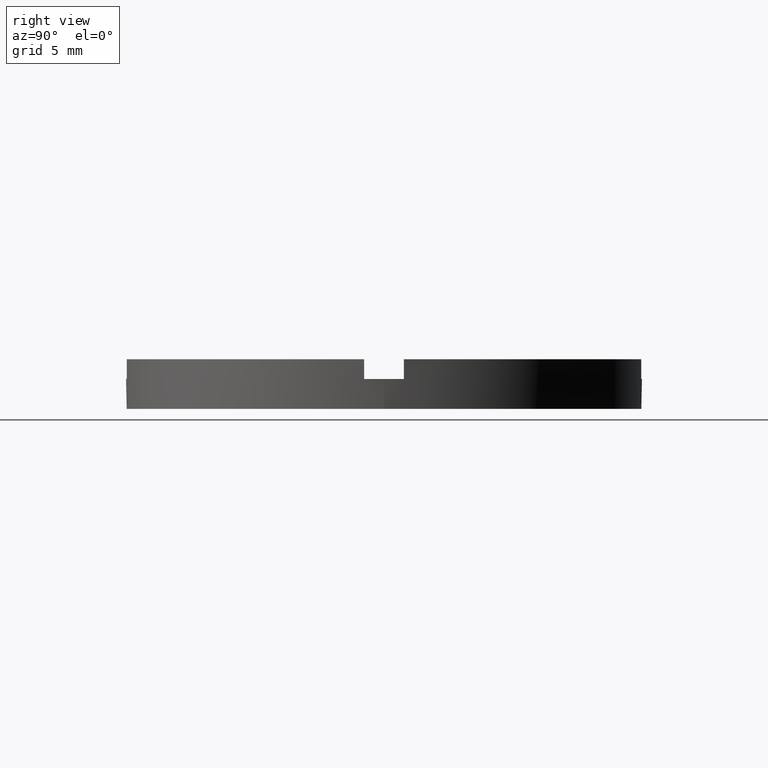
[diagram: clean part render]
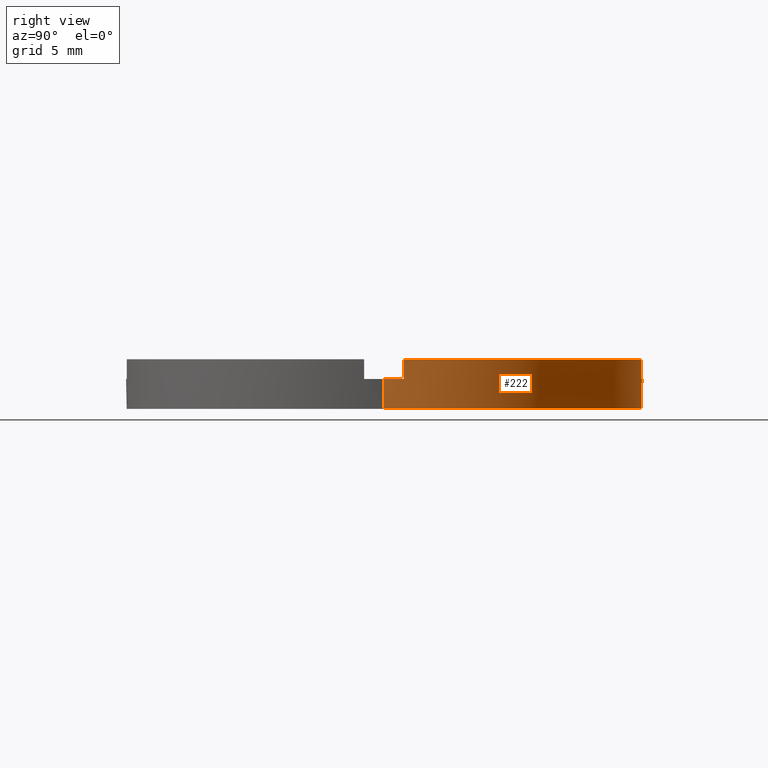
[diagram: same view with one face highlighted and labeled with its STEP entity id]
A machine part, right view. The second image highlights one B-rep face of the part: STEP entity #222.
In plain terms, the highlighted cylindrical surface (partial cylindrical patch) has radius 13 mm, axis along (-0, -0, -1).
Its self-contained STEP definition (entity closure, byte-faithful):
#3 = CARTESIAN_POINT ( 'NONE',  ( -1.000000000000024647, 12.96148139681571543, 2.500000000000000000 ) ) ;
#6 = CARTESIAN_POINT ( 'NONE',  ( -12.99999999999999822, 0.000000000000000000, 1.500000000000000000 ) ) ;
#7 = VECTOR ( 'NONE', #533, 1000.000000000000000 ) ;
#40 = DIRECTION ( 'NONE',  ( 1.000000000000000000, 0.000000000000000000, 0.000000000000000000 ) ) ;
#49 = AXIS2_PLACEMENT_3D ( 'NONE', #326, #197, #426 ) ;
#53 = CARTESIAN_POINT ( 'NONE',  ( -12.99999999999999822, 0.000000000000000000, 0.000000000000000000 ) ) ;
#57 = CARTESIAN_POINT ( 'NONE',  ( 12.99999999999999822, 1.592040838891558898E-15, 0.000000000000000000 ) ) ;
#58 = CARTESIAN_POINT ( 'NONE',  ( 12.99999999999999822, 1.592040838891558898E-15, 2.500000000000000000 ) ) ;
#69 = EDGE_CURVE ( 'NONE', #336, #389, #464, .T. ) ;
#73 = EDGE_CURVE ( 'NONE', #354, #635, #218, .T. ) ;
#75 = EDGE_CURVE ( 'NONE', #106, #413, #220, .T. ) ;
#77 = DIRECTION ( 'NONE',  ( -0.000000000000000000, -0.000000000000000000, -1.000000000000000000 ) ) ;
#86 = AXIS2_PLACEMENT_3D ( 'NONE', #721, #194, #388 ) ;
#101 = ORIENTED_EDGE ( 'NONE', *, *, #563, .T. ) ;
#102 = AXIS2_PLACEMENT_3D ( 'NONE', #741, #302, #349 ) ;
#106 = VERTEX_POINT ( 'NONE', #6 ) ;
#110 = EDGE_LOOP ( 'NONE', ( #699, #386, #168, #599, #448, #101, #340, #690, #436, #685, #338, #686 ) ) ;
#111 = DIRECTION ( 'NONE',  ( -0.000000000000000000, -0.000000000000000000, -1.000000000000000000 ) ) ;
#120 = CARTESIAN_POINT ( 'NONE',  ( -12.96148139681571898, 0.9999999999999776845, 2.500000000000000000 ) ) ;
#139 = VERTEX_POINT ( 'NONE', #666 ) ;
#168 = ORIENTED_EDGE ( 'NONE', *, *, #639, .T. ) ;
#170 = DIRECTION ( 'NONE',  ( 1.000000000000000000, 0.000000000000000000, 0.000000000000000000 ) ) ;
#194 = DIRECTION ( 'NONE',  ( 0.000000000000000000, 0.000000000000000000, 1.000000000000000000 ) ) ;
#197 = DIRECTION ( 'NONE',  ( 0.000000000000000000, 0.000000000000000000, 1.000000000000000000 ) ) ;
#205 = DIRECTION ( 'NONE',  ( -0.000000000000000000, -0.000000000000000000, -1.000000000000000000 ) ) ;
#211 = CARTESIAN_POINT ( 'NONE',  ( 0.9999999999999753530, 12.96148139681571898, 2.500000000000000000 ) ) ;
#218 = CIRCLE ( 'NONE', #277, 12.99999999999999822 ) ;
#219 = VECTOR ( 'NONE', #258, 1000.000000000000000 ) ;
#220 = LINE ( 'NONE', #780, #224 ) ;
#221 = VECTOR ( 'NONE', #77, 1000.000000000000000 ) ;
#222 = ADVANCED_FACE ( 'NONE', ( #761 ), #236, .T. ) ;
#223 = AXIS2_PLACEMENT_3D ( 'NONE', #481, #709, #40 ) ;
#224 = VECTOR ( 'NONE', #403, 1000.000000000000000 ) ;
#230 = LINE ( 'NONE', #733, #219 ) ;
#236 = CYLINDRICAL_SURFACE ( 'NONE', #270, 12.99999999999999822 ) ;
#253 = CARTESIAN_POINT ( 'NONE',  ( 12.96148139681572964, 0.9999999999998402389, 1.500000000000000000 ) ) ;
#258 = DIRECTION ( 'NONE',  ( 0.000000000000000000, 0.000000000000000000, 1.000000000000000000 ) ) ;
#270 = AXIS2_PLACEMENT_3D ( 'NONE', #374, #624, #393 ) ;
#275 = VECTOR ( 'NONE', #205, 1000.000000000000000 ) ;
#277 = AXIS2_PLACEMENT_3D ( 'NONE', #390, #472, #717 ) ;
#278 = LINE ( 'NONE', #58, #275 ) ;
#279 = CIRCLE ( 'NONE', #102, 12.99999999999999822 ) ;
#284 = DIRECTION ( 'NONE',  ( 0.000000000000000000, 0.000000000000000000, 1.000000000000000000 ) ) ;
#288 = CARTESIAN_POINT ( 'NONE',  ( 0.000000000000000000, 0.000000000000000000, 1.500000000000000000 ) ) ;
#291 = CARTESIAN_POINT ( 'NONE',  ( -1.000000000000024647, 12.96148139681571543, 2.500000000000000000 ) ) ;
#302 = DIRECTION ( 'NONE',  ( 0.000000000000000000, 0.000000000000000000, 1.000000000000000000 ) ) ;
#311 = EDGE_CURVE ( 'NONE', #669, #389, #727, .T. ) ;
#322 = EDGE_CURVE ( 'NONE', #354, #664, #230, .T. ) ;
#326 = CARTESIAN_POINT ( 'NONE',  ( 0.000000000000000000, 0.000000000000000000, 2.500000000000000000 ) ) ;
#336 = VERTEX_POINT ( 'NONE', #493 ) ;
#337 = AXIS2_PLACEMENT_3D ( 'NONE', #288, #284, #170 ) ;
#338 = ORIENTED_EDGE ( 'NONE', *, *, #508, .F. ) ;
#340 = ORIENTED_EDGE ( 'NONE', *, *, #782, .F. ) ;
#349 = DIRECTION ( 'NONE',  ( 1.000000000000000000, 0.000000000000000000, 0.000000000000000000 ) ) ;
#353 = VERTEX_POINT ( 'NONE', #3 ) ;
#354 = VERTEX_POINT ( 'NONE', #387 ) ;
#374 = CARTESIAN_POINT ( 'NONE',  ( 0.000000000000000000, 0.000000000000000000, 2.500000000000000000 ) ) ;
#386 = ORIENTED_EDGE ( 'NONE', *, *, #634, .T. ) ;
#387 = CARTESIAN_POINT ( 'NONE',  ( 0.9999999999999753530, 12.96148139681571898, 1.500000000000000000 ) ) ;
#388 = DIRECTION ( 'NONE',  ( 1.000000000000000000, 0.000000000000000000, 0.000000000000000000 ) ) ;
#389 = VERTEX_POINT ( 'NONE', #253 ) ;
#390 = CARTESIAN_POINT ( 'NONE',  ( 0.000000000000000000, 0.000000000000000000, 1.500000000000000000 ) ) ;
#393 = DIRECTION ( 'NONE',  ( -1.000000000000000000, 0.000000000000000000, 0.000000000000000000 ) ) ;
#403 = DIRECTION ( 'NONE',  ( -0.000000000000000000, -0.000000000000000000, -1.000000000000000000 ) ) ;
#413 = VERTEX_POINT ( 'NONE', #53 ) ;
#426 = DIRECTION ( 'NONE',  ( 1.000000000000000000, 0.000000000000000000, 0.000000000000000000 ) ) ;
#436 = ORIENTED_EDGE ( 'NONE', *, *, #73, .F. ) ;
#448 = ORIENTED_EDGE ( 'NONE', *, *, #743, .F. ) ;
#464 = CIRCLE ( 'NONE', #223, 12.99999999999999822 ) ;
#472 = DIRECTION ( 'NONE',  ( 0.000000000000000000, -0.000000000000000000, 1.000000000000000000 ) ) ;
#481 = CARTESIAN_POINT ( 'NONE',  ( 0.000000000000000000, 0.000000000000000000, 1.500000000000000000 ) ) ;
#488 = VECTOR ( 'NONE', #111, 1000.000000000000000 ) ;
#493 = CARTESIAN_POINT ( 'NONE',  ( 12.99999999999999822, 1.592040838891558898E-15, 1.500000000000000000 ) ) ;
#496 = CARTESIAN_POINT ( 'NONE',  ( 12.96148139681572964, 0.9999999999998402389, 2.500000000000000000 ) ) ;
#505 = EDGE_CURVE ( 'NONE', #353, #635, #742, .T. ) ;
#508 = EDGE_CURVE ( 'NONE', #669, #664, #748, .T. ) ;
#517 = LINE ( 'NONE', #706, #7 ) ;
#533 = DIRECTION ( 'NONE',  ( 0.000000000000000000, 0.000000000000000000, 1.000000000000000000 ) ) ;
#543 = CIRCLE ( 'NONE', #86, 12.99999999999999822 ) ;
#549 = CIRCLE ( 'NONE', #337, 12.99999999999999822 ) ;
#563 = EDGE_CURVE ( 'NONE', #139, #636, #517, .T. ) ;
#591 = CARTESIAN_POINT ( 'NONE',  ( -1.000000000000024647, 12.96148139681571543, 1.500000000000000000 ) ) ;
#599 = ORIENTED_EDGE ( 'NONE', *, *, #75, .F. ) ;
#624 = DIRECTION ( 'NONE',  ( -0.000000000000000000, -0.000000000000000000, -1.000000000000000000 ) ) ;
#634 = EDGE_CURVE ( 'NONE', #336, #691, #278, .T. ) ;
#635 = VERTEX_POINT ( 'NONE', #591 ) ;
#636 = VERTEX_POINT ( 'NONE', #120 ) ;
#639 = EDGE_CURVE ( 'NONE', #691, #413, #279, .T. ) ;
#642 = CARTESIAN_POINT ( 'NONE',  ( 12.96148139681572964, 0.9999999999998402389, 2.500000000000000000 ) ) ;
#664 = VERTEX_POINT ( 'NONE', #211 ) ;
#666 = CARTESIAN_POINT ( 'NONE',  ( -12.96148139681571898, 0.9999999999999776845, 1.500000000000000000 ) ) ;
#669 = VERTEX_POINT ( 'NONE', #642 ) ;
#685 = ORIENTED_EDGE ( 'NONE', *, *, #322, .T. ) ;
#686 = ORIENTED_EDGE ( 'NONE', *, *, #311, .T. ) ;
#690 = ORIENTED_EDGE ( 'NONE', *, *, #505, .T. ) ;
#691 = VERTEX_POINT ( 'NONE', #57 ) ;
#699 = ORIENTED_EDGE ( 'NONE', *, *, #69, .F. ) ;
#706 = CARTESIAN_POINT ( 'NONE',  ( -12.96148139681571898, 0.9999999999999776845, 2.500000000000000000 ) ) ;
#709 = DIRECTION ( 'NONE',  ( 0.000000000000000000, 0.000000000000000000, 1.000000000000000000 ) ) ;
#717 = DIRECTION ( 'NONE',  ( 1.000000000000000000, 0.000000000000000000, 0.000000000000000000 ) ) ;
#721 = CARTESIAN_POINT ( 'NONE',  ( 0.000000000000000000, 0.000000000000000000, 2.500000000000000000 ) ) ;
#727 = LINE ( 'NONE', #496, #488 ) ;
#733 = CARTESIAN_POINT ( 'NONE',  ( 0.9999999999999753530, 12.96148139681571898, 2.500000000000000000 ) ) ;
#741 = CARTESIAN_POINT ( 'NONE',  ( 0.000000000000000000, 0.000000000000000000, 0.000000000000000000 ) ) ;
#742 = LINE ( 'NONE', #291, #221 ) ;
#743 = EDGE_CURVE ( 'NONE', #139, #106, #549, .T. ) ;
#748 = CIRCLE ( 'NONE', #49, 12.99999999999999822 ) ;
#761 = FACE_OUTER_BOUND ( 'NONE', #110, .T. ) ;
#780 = CARTESIAN_POINT ( 'NONE',  ( -12.99999999999999822, 0.000000000000000000, 2.500000000000000000 ) ) ;
#782 = EDGE_CURVE ( 'NONE', #353, #636, #543, .T. ) ;